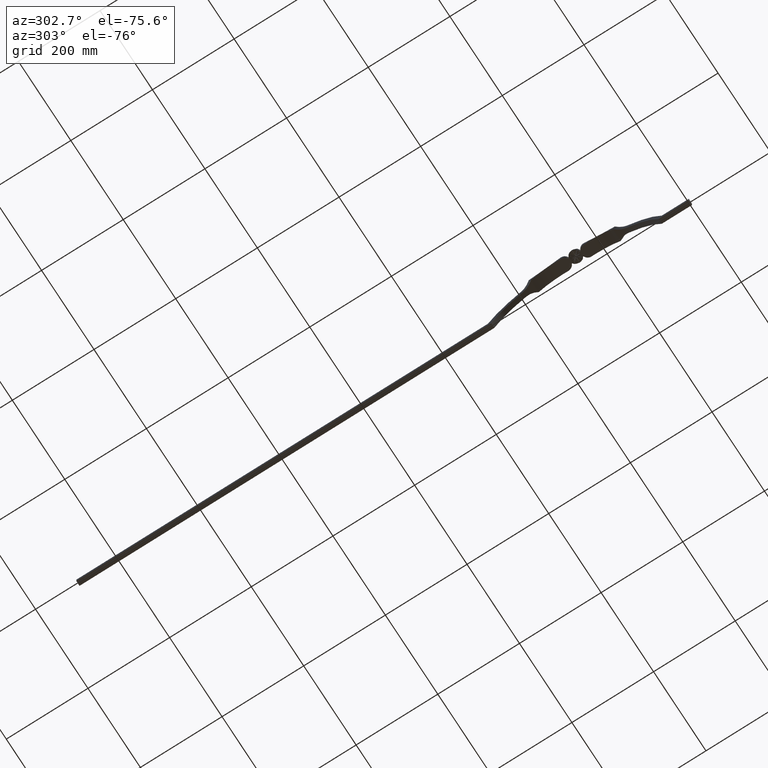
[diagram: clean part render]
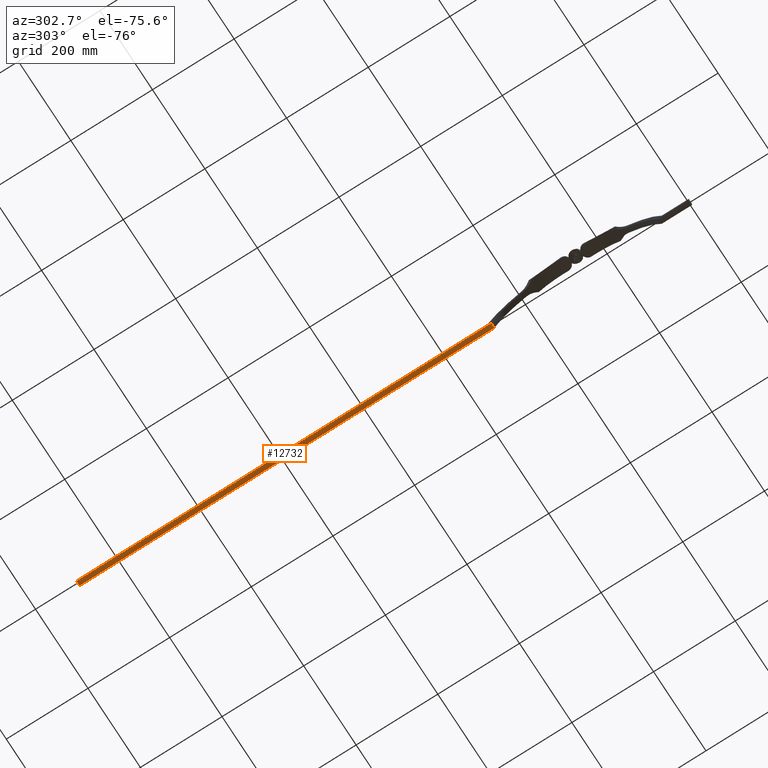
[diagram: same view with one face highlighted and labeled with its STEP entity id]
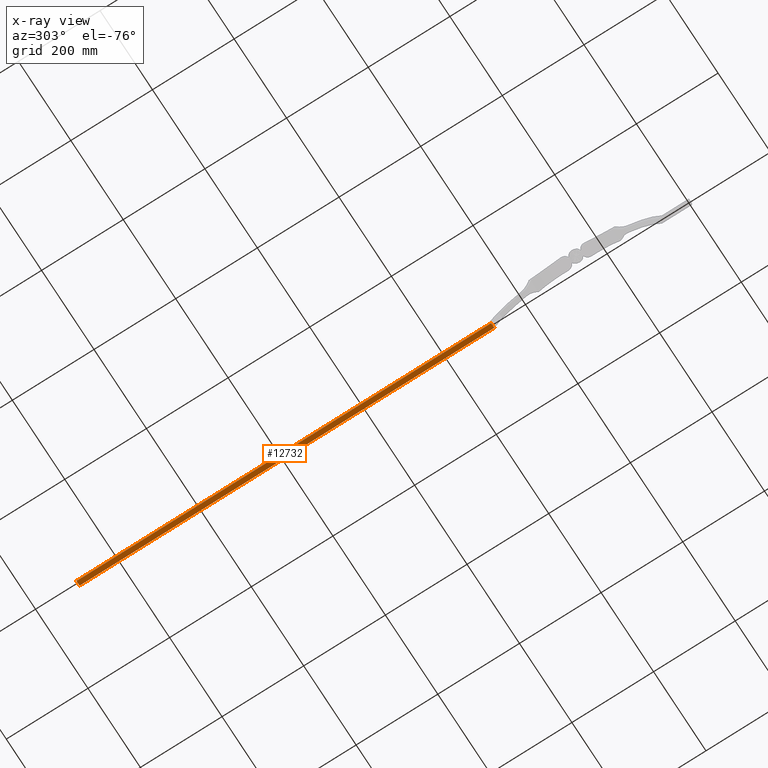
[diagram: x-ray of the same camera — body ghosted, the highlighted face saturated]
A machine part, auxiliary view. The second image highlights one B-rep face of the part: STEP entity #12732.
The next image is the same camera in x-ray: the body ghosted, the highlighted face saturated — about 0% of this face is hidden behind the body in this view.
In plain terms, the highlighted planar face has unit normal (0, -0, 1).
Its self-contained STEP definition (entity closure, byte-faithful):
#56 = CARTESIAN_POINT ( 'NONE',  ( 0.0000000000000000000, 1500.000000000000000, 3.797417691998145900E-014 ) ) ;
#412 = ORIENTED_EDGE ( 'NONE', *, *, #5841, .F. ) ;
#625 = EDGE_CURVE ( 'NONE', #8665, #2121, #2914, .T. ) ;
#682 = EDGE_LOOP ( 'NONE', ( #3490, #13546, #412, #13970 ) ) ;
#794 = CARTESIAN_POINT ( 'NONE',  ( 12.00000000000000000, 484.1243525279238600, -2.775557561562891400E-014 ) ) ;
#1723 = VECTOR ( 'NONE', #8457, 1000.000000000000000 ) ;
#2012 = DIRECTION ( 'NONE',  ( -1.000000000000000000, -0.0000000000000000000, -0.0000000000000000000 ) ) ;
#2076 = DIRECTION ( 'NONE',  ( -1.000000000000000000, -0.0000000000000000000, -0.0000000000000000000 ) ) ;
#2121 = VERTEX_POINT ( 'NONE', #11121 ) ;
#2127 = CARTESIAN_POINT ( 'NONE',  ( 12.00000000000000000, 1500.000000000000000, 3.797417691998145900E-014 ) ) ;
#2224 = LINE ( 'NONE', #14868, #5857 ) ;
#2405 = LINE ( 'NONE', #794, #13762 ) ;
#2585 = CARTESIAN_POINT ( 'NONE',  ( 12.00000000000000000, 1500.000000000000000, 3.797417691998145900E-014 ) ) ;
#2588 = FACE_OUTER_BOUND ( 'NONE', #682, .T. ) ;
#2914 = LINE ( 'NONE', #2127, #14936 ) ;
#3328 = VERTEX_POINT ( 'NONE', #10965 ) ;
#3490 = ORIENTED_EDGE ( 'NONE', *, *, #9748, .T. ) ;
#5032 = PLANE ( 'NONE',  #7337 ) ;
#5610 = EDGE_CURVE ( 'NONE', #10935, #3328, #2405, .T. ) ;
#5841 = EDGE_CURVE ( 'NONE', #10935, #8665, #2224, .T. ) ;
#5857 = VECTOR ( 'NONE', #6910, 1000.000000000000000 ) ;
#6253 = CARTESIAN_POINT ( 'NONE',  ( 12.00000000000000000, 1500.000000000000000, 3.797417691998145900E-014 ) ) ;
#6910 = DIRECTION ( 'NONE',  ( -0.0000000000000000000, 1.000000000000000000, 6.470255754153915100E-017 ) ) ;
#7337 = AXIS2_PLACEMENT_3D ( 'NONE', #6253, #14267, #7460 ) ;
#7460 = DIRECTION ( 'NONE',  ( 0.0000000000000000000, -1.000000000000000000, -6.470255754153915100E-017 ) ) ;
#7782 = LINE ( 'NONE', #56, #1723 ) ;
#8457 = DIRECTION ( 'NONE',  ( -0.0000000000000000000, 1.000000000000000000, 6.470255754153915100E-017 ) ) ;
#8665 = VERTEX_POINT ( 'NONE', #2585 ) ;
#8880 = CARTESIAN_POINT ( 'NONE',  ( 12.00000000000000000, 484.1243525279238600, -2.775557561562891400E-014 ) ) ;
#9748 = EDGE_CURVE ( 'NONE', #3328, #2121, #7782, .T. ) ;
#10935 = VERTEX_POINT ( 'NONE', #8880 ) ;
#10965 = CARTESIAN_POINT ( 'NONE',  ( 0.0000000000000000000, 484.1243525279238600, -2.775557561562891400E-014 ) ) ;
#11121 = CARTESIAN_POINT ( 'NONE',  ( 0.0000000000000000000, 1500.000000000000000, 3.797417691998145900E-014 ) ) ;
#12732 = ADVANCED_FACE ( 'NONE', ( #2588 ), #5032, .F. ) ;
#13546 = ORIENTED_EDGE ( 'NONE', *, *, #625, .F. ) ;
#13762 = VECTOR ( 'NONE', #2012, 1000.000000000000000 ) ;
#13970 = ORIENTED_EDGE ( 'NONE', *, *, #5610, .T. ) ;
#14267 = DIRECTION ( 'NONE',  ( 0.0000000000000000000, -6.470255754153915100E-017, 1.000000000000000000 ) ) ;
#14868 = CARTESIAN_POINT ( 'NONE',  ( 12.00000000000000000, 1500.000000000000000, 3.797417691998145900E-014 ) ) ;
#14936 = VECTOR ( 'NONE', #2076, 1000.000000000000000 ) ;